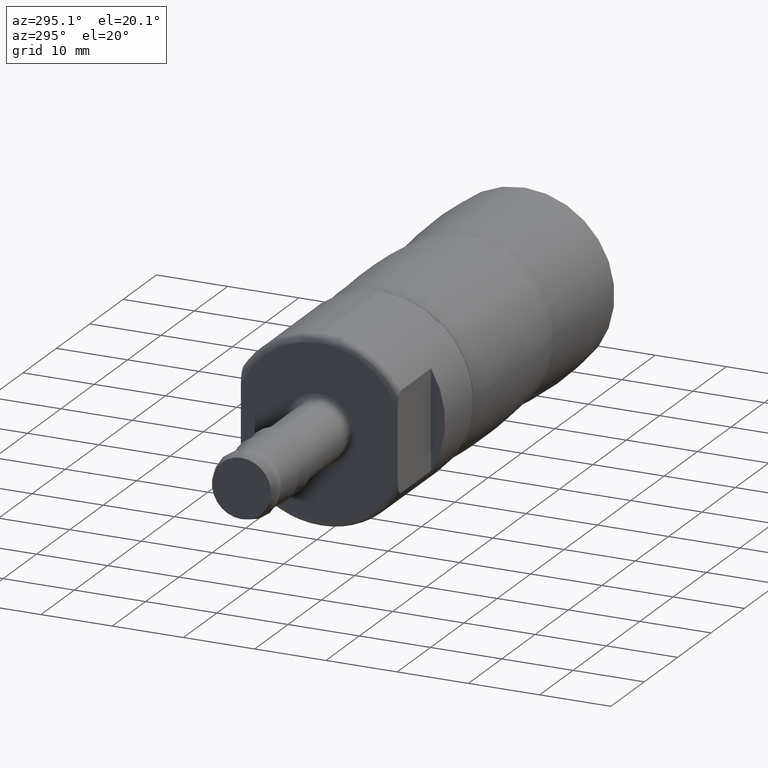
[diagram: clean part render]
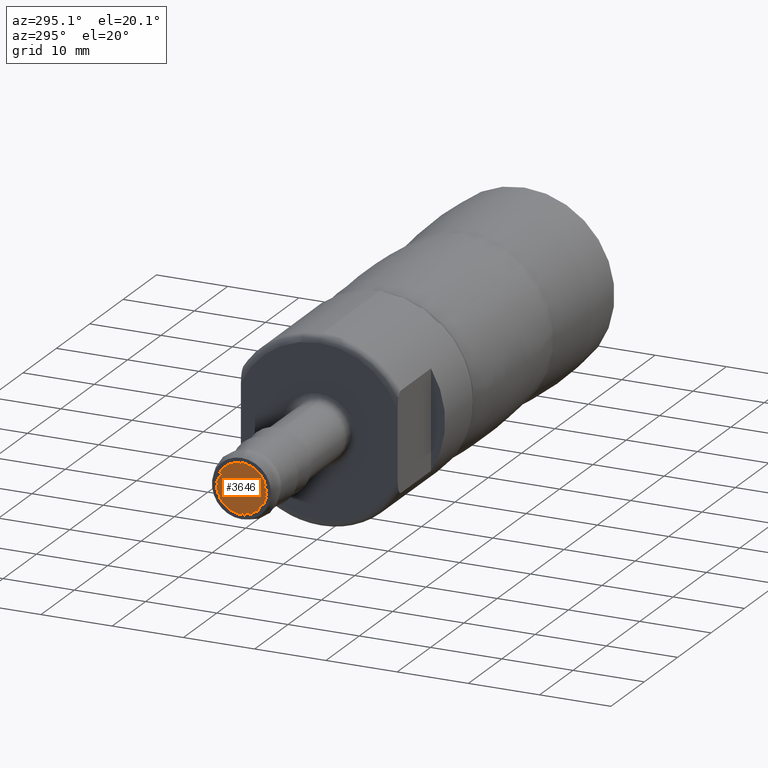
[diagram: same view with one face highlighted and labeled with its STEP entity id]
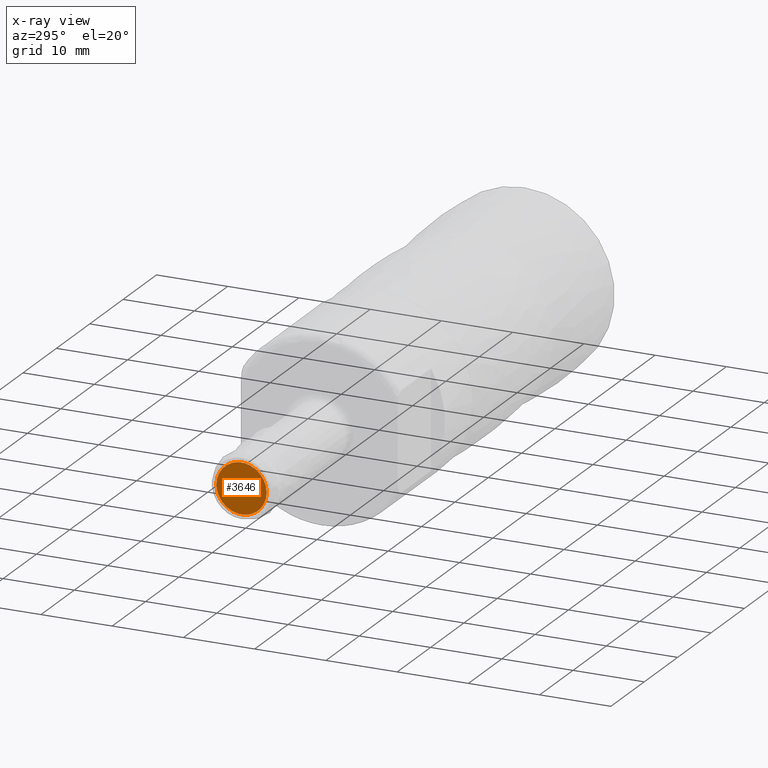
[diagram: x-ray of the same camera — body ghosted, the highlighted face saturated]
A machine part, auxiliary view. The second image highlights one B-rep face of the part: STEP entity #3646.
The next image is the same camera in x-ray: the body ghosted, the highlighted face saturated — about 0% of this face is hidden behind the body in this view.
In plain terms, the highlighted planar face has unit normal (-1, 0, 0).
Its self-contained STEP definition (entity closure, byte-faithful):
#134=PLANE('',#4116);
#896=FACE_OUTER_BOUND('',#1139,.T.);
#1139=EDGE_LOOP('',(#3231,#3232));
#1392=CIRCLE('',#4117,3.52908614254086);
#1393=CIRCLE('',#4118,3.52908614254086);
#1777=VERTEX_POINT('',#12054);
#1778=VERTEX_POINT('',#12055);
#2282=EDGE_CURVE('',#1777,#1778,#1392,.T.);
#2283=EDGE_CURVE('',#1778,#1777,#1393,.T.);
#3231=ORIENTED_EDGE('',*,*,#2282,.F.);
#3232=ORIENTED_EDGE('',*,*,#2283,.F.);
#3646=ADVANCED_FACE('',(#896),#134,.T.);
#4116=AXIS2_PLACEMENT_3D('',#12053,#5075,#5076);
#4117=AXIS2_PLACEMENT_3D('',#12056,#5077,#5078);
#4118=AXIS2_PLACEMENT_3D('',#12057,#5079,#5080);
#5075=DIRECTION('center_axis',(-1.,0.,0.));
#5076=DIRECTION('ref_axis',(0.,0.,1.));
#5077=DIRECTION('center_axis',(1.,0.,0.));
#5078=DIRECTION('ref_axis',(0.,0.,-1.));
#5079=DIRECTION('center_axis',(1.,0.,0.));
#5080=DIRECTION('ref_axis',(0.,0.,-1.));
#12053=CARTESIAN_POINT('Origin',(-32.599999999992,3.52908614254086,0.));
#12054=CARTESIAN_POINT('',(-32.599999999992,3.52908614254086,0.));
#12055=CARTESIAN_POINT('',(-32.599999999992,-3.52908614254086,-4.32188404837794E-16));
#12056=CARTESIAN_POINT('Origin',(-32.599999999992,0.,0.));
#12057=CARTESIAN_POINT('Origin',(-32.599999999992,0.,0.));